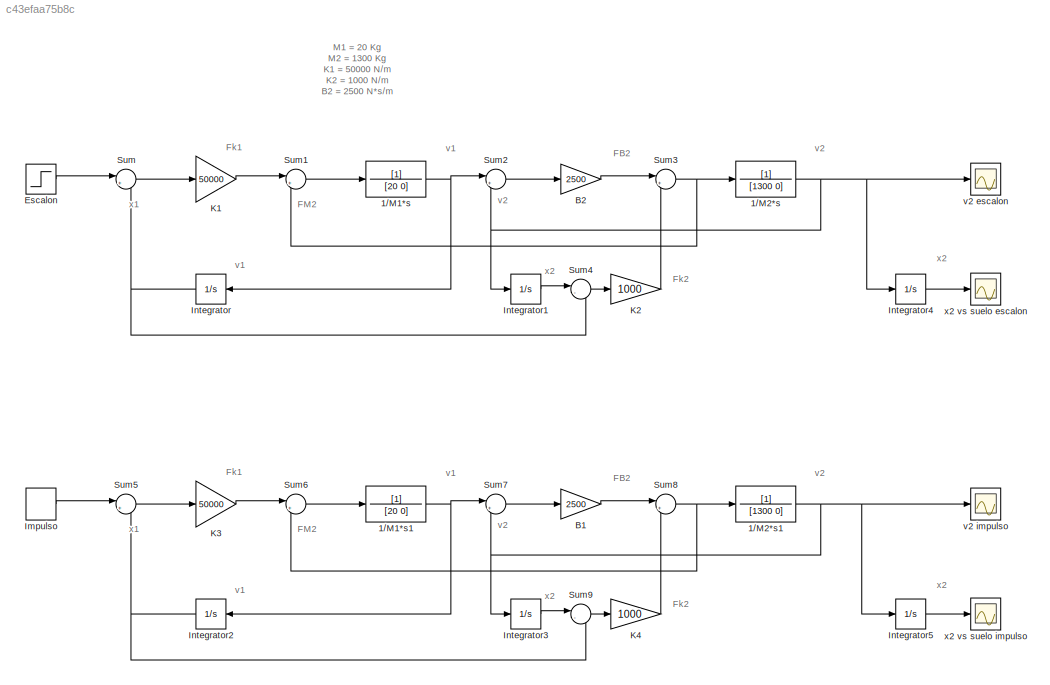
MODEL slx_c43efaa75b8c
KIND model
CONFIG AbsTol = auto
CONFIG EnableMultiTasking = off
CONFIG FixedStep = auto
CONFIG MaxStep = auto
CONFIG MinStep = auto
CONFIG RelTol = 1e-3
CONFIG SampleTimeConstraint = Unconstrained
CONFIG SolverName = VariableStepAuto
CONFIG StartTime = 0.0
CONFIG StopTime = 10.0
BLOCK [TransferFcn] 1//M1*s
  Denominator = [20 0]
BLOCK [TransferFcn] 1//M1*s1
  Denominator = [20 0]
BLOCK [TransferFcn] 1//M2*s
  Denominator = [1300 0]
BLOCK [TransferFcn] 1//M2*s1
  Denominator = [1300 0]
BLOCK [Gain] B1
  Gain = 2500
BLOCK [Gain] B2
  Gain = 2500
BLOCK [Step] Escalon
  SampleTime = 0
  Time = 0
BLOCK [DiscretePulseGenerator] Impulso
  Period = 10
  Ports = [0, 1]
  PulseType = Time based
  PulseWidth = 5
BLOCK [Integrator] Integrator
  NameLocation = top
  Ports = [1, 1]
BLOCK [Integrator] Integrator1
  Ports = [1, 1]
BLOCK [Integrator] Integrator2
  NameLocation = top
  Ports = [1, 1]
BLOCK [Integrator] Integrator3
  Ports = [1, 1]
BLOCK [Integrator] Integrator4
  Ports = [1, 1]
BLOCK [Integrator] Integrator5
  Ports = [1, 1]
BLOCK [Gain] K1
  Gain = 50000
BLOCK [Gain] K2
  Gain = 1000
BLOCK [Gain] K3
  Gain = 50000
BLOCK [Gain] K4
  Gain = 1000
BLOCK [Sum] Sum
  Inputs = |+-
  Ports = [2, 1]
BLOCK [Sum] Sum1
  Inputs = |+-
  Ports = [2, 1]
BLOCK [Sum] Sum2
  Inputs = |+-
  Ports = [2, 1]
BLOCK [Sum] Sum3
  Inputs = |++
  Ports = [2, 1]
BLOCK [Sum] Sum4
  Inputs = |-+
  Ports = [2, 1]
BLOCK [Sum] Sum5
  Inputs = |+-
  Ports = [2, 1]
BLOCK [Sum] Sum6
  Inputs = |+-
  Ports = [2, 1]
BLOCK [Sum] Sum7
  Inputs = |+-
  Ports = [2, 1]
BLOCK [Sum] Sum8
  Inputs = |++
  Ports = [2, 1]
BLOCK [Sum] Sum9
  Inputs = |-+
  Ports = [2, 1]
BLOCK [Scope] v2 escalon
  Floating = off
  NumInputPorts = 1
  Ports = [1]
  ScopeSpecificationString = Simulink.scopes.TimeScopeBlockCfg('CurrentConfiguration', extmgr.ConfigurationSet(extmgr.Configuration('Core','General UI',true),extmgr.Configuration('Core','Source UI',true),extmgr.Configuration('Sources','WiredSimulink',true,'DataLoggingVariableName','ScopeData1'),extmgr.Configuration('Visuals','Time Domain',true,'SerializedDisplays',{struct('MinYLimReal','-0.25686','MaxYLimReal','1.90949','YLab...<+1365ch>
BLOCK [Scope] v2 impulso
  Floating = off
  NumInputPorts = 1
  Ports = [1]
  ScopeSpecificationString = Simulink.scopes.TimeScopeBlockCfg('CurrentConfiguration', extmgr.ConfigurationSet(extmgr.Configuration('Core','General UI',true),extmgr.Configuration('Core','Source UI',true),extmgr.Configuration('Sources','WiredSimulink',true,'DataLoggingVariableName','ScopeData3'),extmgr.Configuration('Visuals','Time Domain',true,'SerializedDisplays',{struct('MinYLimReal','-1.26889','MaxYLimReal','2.02194','YLab...<+1366ch>
BLOCK [Scope] x2 vs suelo escalon
  Floating = off
  NumInputPorts = 1
  Ports = [1]
  ScopeSpecificationString = Simulink.scopes.TimeScopeBlockCfg('CurrentConfiguration', extmgr.ConfigurationSet(extmgr.Configuration('Core','General UI',true),extmgr.Configuration('Core','Source UI',true),extmgr.Configuration('Sources','WiredSimulink',true),extmgr.Configuration('Visuals','Time Domain',true,'SerializedDisplays',{struct('MinYLimReal','-0.14112','MaxYLimReal','1.27011','YLabelReal','','MinYLimMag','0.00000','MaxY...<+1362ch>
BLOCK [Scope] x2 vs suelo impulso
  Floating = off
  NumInputPorts = 1
  Ports = [1]
  ScopeSpecificationString = Simulink.scopes.TimeScopeBlockCfg('CurrentConfiguration', extmgr.ConfigurationSet(extmgr.Configuration('Core','General UI',true),extmgr.Configuration('Core','Source UI',true),extmgr.Configuration('Sources','WiredSimulink',true,'DataLoggingVariableName','ScopeData2'),extmgr.Configuration('Visuals','Time Domain',true,'SerializedDisplays',{struct('MinYLimReal','-0.10688','MaxYLimReal','0.76253','YLab...<+1403ch>
ANNOTATION (root): FB2
ANNOTATION (root): FM2
ANNOTATION (root): Fk1
ANNOTATION (root): Fk2
ANNOTATION (root): M1 = 20 Kg M2 = 1300 Kg K1 = 50000 N/m K2 = 1000 N/m B2 = 2500 N*s/m
ANNOTATION (root): v1
ANNOTATION (root): v2
ANNOTATION (root): x1
ANNOTATION (root): x2
NET 1//M1*s1:1 -> Integrator2:1, Sum7:1
NET 1//M1*s:1 -> Integrator:1, Sum2:1
NET 1//M2*s1:1 -> Integrator3:1, Integrator5:1, Sum7:2, v2 impulso:1
NET 1//M2*s:1 -> Integrator1:1, Integrator4:1, Sum2:2, v2 escalon:1
LINE B1:1 -> Sum8:1
LINE B2:1 -> Sum3:1
LINE Escalon:1 -> Sum:1
LINE Impulso:1 -> Sum5:1
LINE Integrator1:1 -> Sum4:1
NET Integrator2:1 -> Sum5:2, Sum9:2
LINE Integrator3:1 -> Sum9:1
LINE Integrator4:1 -> x2 vs suelo escalon:1
LINE Integrator5:1 -> x2 vs suelo impulso:1
NET Integrator:1 -> Sum4:2, Sum:2
LINE K1:1 -> Sum1:1
LINE K2:1 -> Sum3:2
LINE K3:1 -> Sum6:1
LINE K4:1 -> Sum8:2
LINE Sum1:1 -> 1//M1*s:1
LINE Sum2:1 -> B2:1
NET Sum3:1 -> 1//M2*s:1, Sum1:2
LINE Sum4:1 -> K2:1
LINE Sum5:1 -> K3:1
LINE Sum6:1 -> 1//M1*s1:1
LINE Sum7:1 -> B1:1
NET Sum8:1 -> 1//M2*s1:1, Sum6:2
LINE Sum9:1 -> K4:1
LINE Sum:1 -> K1:1
note: NET lines group one-source signal fan-out (src -> all destinations, sorted); 1:1 wires keep LINE
